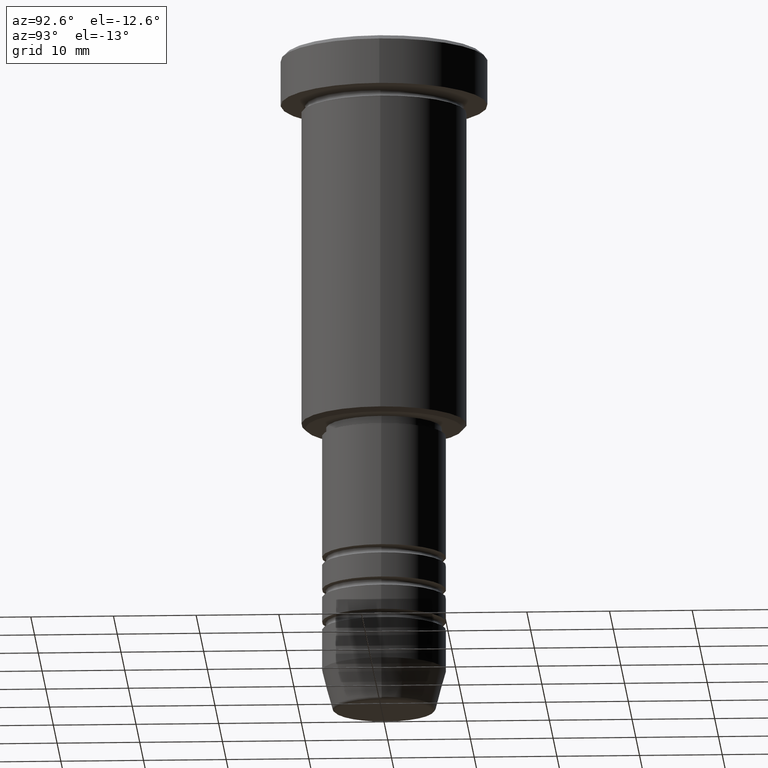
[diagram: clean part render]
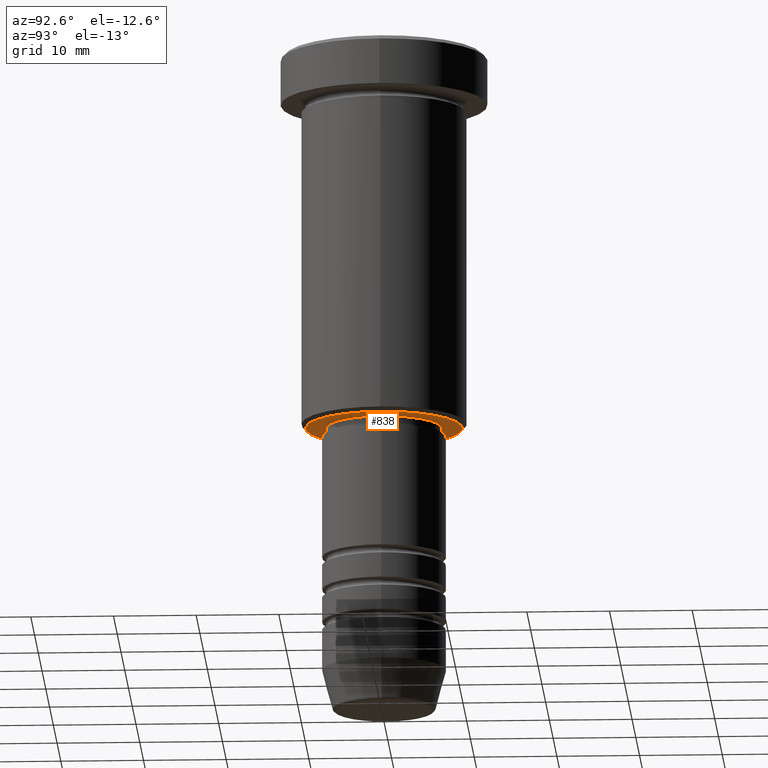
[diagram: same view with one face highlighted and labeled with its STEP entity id]
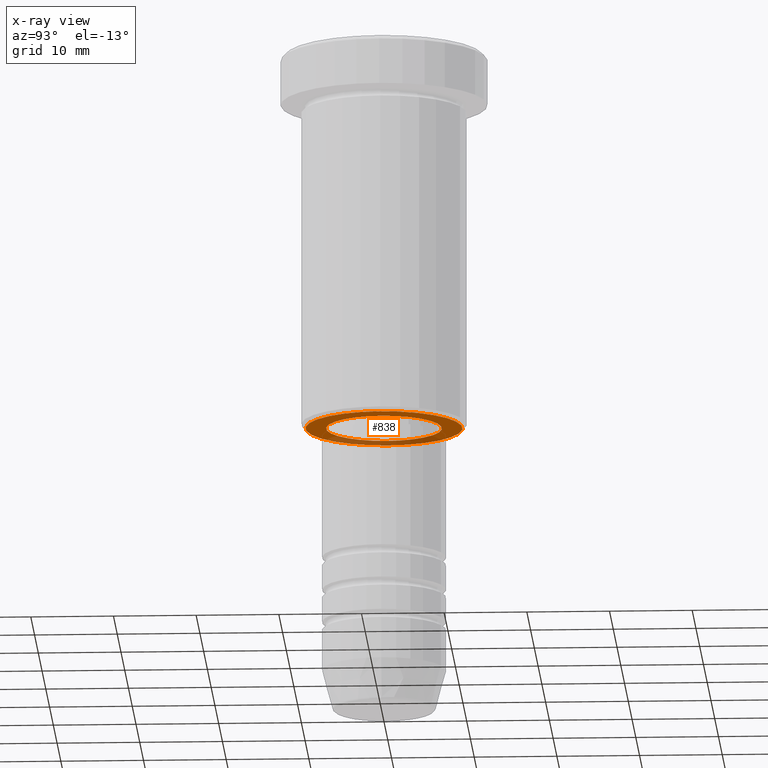
[diagram: x-ray of the same camera — body ghosted, the highlighted face saturated]
A machine part, auxiliary view. The second image highlights one B-rep face of the part: STEP entity #838.
The next image is the same camera in x-ray: the body ghosted, the highlighted face saturated — about 28% of this face is hidden behind the body in this view.
In plain terms, the highlighted planar face has unit normal (0, 0, -1).
Its self-contained STEP definition (entity closure, byte-faithful):
#2 = DIRECTION ( 'NONE',  ( 1.000000000000000000, 0.000000000000000000, 0.000000000000000000 ) ) ;
#3 = FACE_OUTER_BOUND ( 'NONE', #1023, .T. ) ;
#36 = DIRECTION ( 'NONE',  ( -1.000000000000000000, 0.000000000000000000, 0.000000000000000000 ) ) ;
#40 = DIRECTION ( 'NONE',  ( 1.000000000000000000, 0.000000000000000000, 0.000000000000000000 ) ) ;
#49 = DIRECTION ( 'NONE',  ( -1.000000000000000000, 0.000000000000000000, 0.000000000000000000 ) ) ;
#53 = VERTEX_POINT ( 'NONE', #1110 ) ;
#67 = CIRCLE ( 'NONE', #502, 6.999999999999999112 ) ;
#120 = VERTEX_POINT ( 'NONE', #466 ) ;
#134 = EDGE_CURVE ( 'NONE', #1183, #53, #315, .T. ) ;
#136 = CARTESIAN_POINT ( 'NONE',  ( -9.499999999999994671, 1.194030629168669075E-15, -46.00000000000001421 ) ) ;
#139 = CARTESIAN_POINT ( 'NONE',  ( 0.000000000000000000, 0.000000000000000000, -46.00000000000001421 ) ) ;
#142 = ORIENTED_EDGE ( 'NONE', *, *, #332, .T. ) ;
#146 = AXIS2_PLACEMENT_3D ( 'NONE', #195, #304, #2 ) ;
#195 = CARTESIAN_POINT ( 'NONE',  ( 0.000000000000000000, 0.000000000000000000, -46.00000000000001421 ) ) ;
#212 = EDGE_CURVE ( 'NONE', #120, #312, #1133, .T. ) ;
#224 = AXIS2_PLACEMENT_3D ( 'NONE', #957, #874, #49 ) ;
#262 = AXIS2_PLACEMENT_3D ( 'NONE', #1068, #1096, #997 ) ;
#280 = AXIS2_PLACEMENT_3D ( 'NONE', #605, #784, #36 ) ;
#292 = EDGE_CURVE ( 'NONE', #53, #1183, #67, .T. ) ;
#304 = DIRECTION ( 'NONE',  ( -0.000000000000000000, -0.000000000000000000, 1.000000000000000000 ) ) ;
#312 = VERTEX_POINT ( 'NONE', #136 ) ;
#315 = CIRCLE ( 'NONE', #146, 6.999999999999999112 ) ;
#332 = EDGE_CURVE ( 'NONE', #312, #120, #1109, .T. ) ;
#402 = DIRECTION ( 'NONE',  ( -0.000000000000000000, -0.000000000000000000, 1.000000000000000000 ) ) ;
#444 = FACE_BOUND ( 'NONE', #905, .T. ) ;
#466 = CARTESIAN_POINT ( 'NONE',  ( 9.499999999999994671, 0.000000000000000000, -46.00000000000001421 ) ) ;
#502 = AXIS2_PLACEMENT_3D ( 'NONE', #139, #402, #40 ) ;
#605 = CARTESIAN_POINT ( 'NONE',  ( 0.000000000000000000, 0.000000000000000000, -46.00000000000001421 ) ) ;
#784 = DIRECTION ( 'NONE',  ( 0.000000000000000000, 0.000000000000000000, -1.000000000000000000 ) ) ;
#820 = PLANE ( 'NONE',  #262 ) ;
#838 = ADVANCED_FACE ( 'NONE', ( #3, #444 ), #820, .T. ) ;
#865 = ORIENTED_EDGE ( 'NONE', *, *, #212, .T. ) ;
#874 = DIRECTION ( 'NONE',  ( 0.000000000000000000, 0.000000000000000000, -1.000000000000000000 ) ) ;
#905 = EDGE_LOOP ( 'NONE', ( #1004, #1167 ) ) ;
#957 = CARTESIAN_POINT ( 'NONE',  ( 0.000000000000000000, 0.000000000000000000, -46.00000000000001421 ) ) ;
#997 = DIRECTION ( 'NONE',  ( -1.000000000000000000, 0.000000000000000000, -0.000000000000000000 ) ) ;
#1004 = ORIENTED_EDGE ( 'NONE', *, *, #134, .T. ) ;
#1011 = CARTESIAN_POINT ( 'NONE',  ( 6.999999999999999112, 0.000000000000000000, -46.00000000000001421 ) ) ;
#1023 = EDGE_LOOP ( 'NONE', ( #865, #142 ) ) ;
#1068 = CARTESIAN_POINT ( 'NONE',  ( 0.000000000000000000, 10.00000000000000000, -46.00000000000001421 ) ) ;
#1096 = DIRECTION ( 'NONE',  ( 0.000000000000000000, 0.000000000000000000, -1.000000000000000000 ) ) ;
#1109 = CIRCLE ( 'NONE', #224, 9.499999999999994671 ) ;
#1110 = CARTESIAN_POINT ( 'NONE',  ( -6.999999999999999112, 8.572527594031472204E-16, -46.00000000000001421 ) ) ;
#1133 = CIRCLE ( 'NONE', #280, 9.499999999999994671 ) ;
#1167 = ORIENTED_EDGE ( 'NONE', *, *, #292, .T. ) ;
#1183 = VERTEX_POINT ( 'NONE', #1011 ) ;